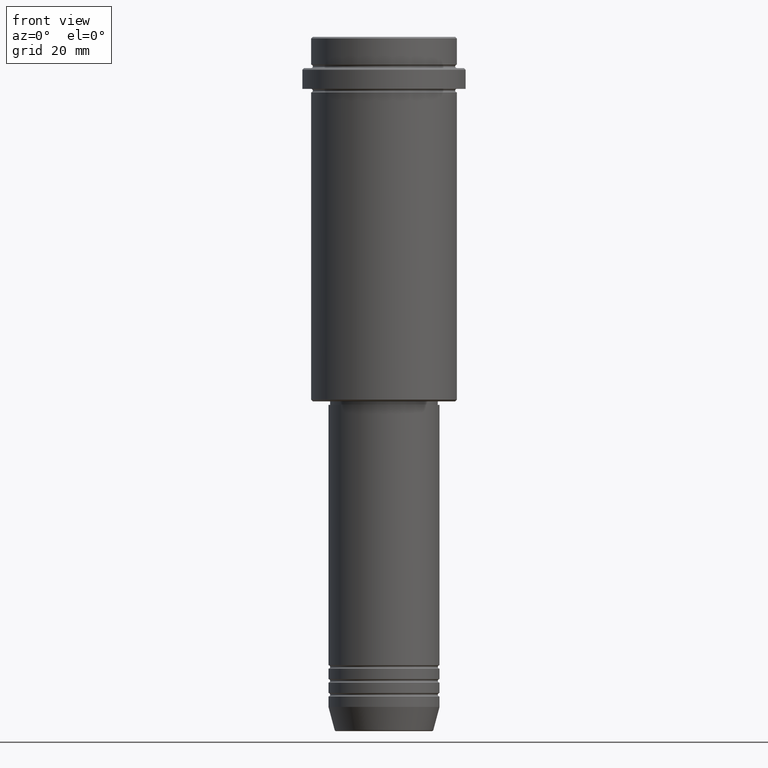
[diagram: clean part render]
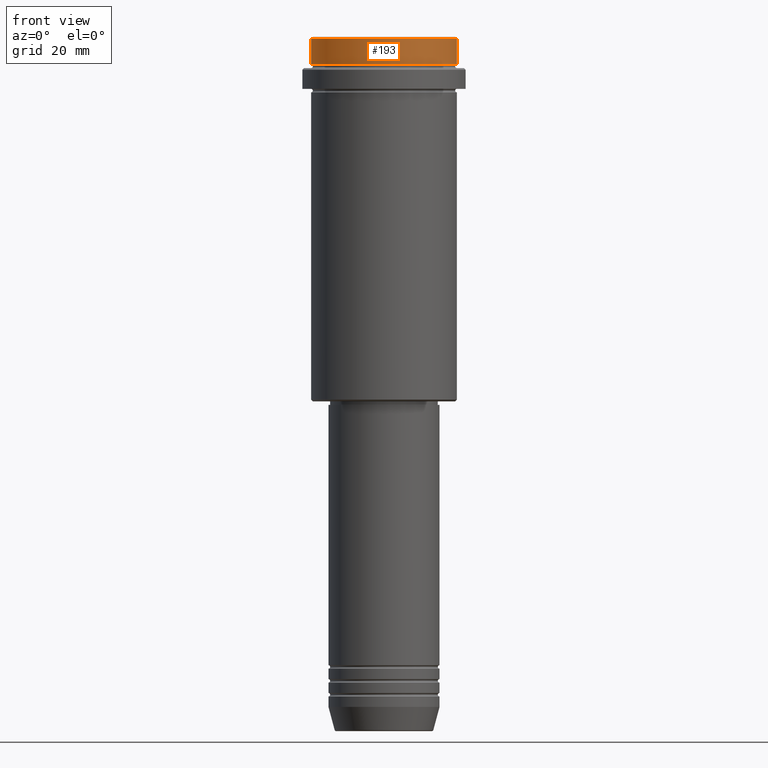
[diagram: same view with one face highlighted and labeled with its STEP entity id]
A machine part, front view. The second image highlights one B-rep face of the part: STEP entity #193.
In plain terms, the highlighted cylindrical surface (partial cylindrical patch) has radius 21 mm, axis along (-0, -0, 1).
Its self-contained STEP definition (entity closure, byte-faithful):
#23 = CARTESIAN_POINT ( 'NONE',  ( 0.000000000000000000, 0.000000000000000000, -0.5000000000000108802 ) ) ;
#74 = ORIENTED_EDGE ( 'NONE', *, *, #560, .T. ) ;
#127 = EDGE_CURVE ( 'NONE', #508, #980, #156, .T. ) ;
#156 = CIRCLE ( 'NONE', #1064, 21.00000000000000000 ) ;
#162 = EDGE_CURVE ( 'NONE', #508, #284, #505, .T. ) ;
#193 = ADVANCED_FACE ( 'NONE', ( #292 ), #729, .T. ) ;
#235 = CARTESIAN_POINT ( 'NONE',  ( 21.00000000000000000, 0.000000000000000000, -0.5000000000000108802 ) ) ;
#273 = AXIS2_PLACEMENT_3D ( 'NONE', #23, #1009, #700 ) ;
#274 = ORIENTED_EDGE ( 'NONE', *, *, #162, .F. ) ;
#284 = VERTEX_POINT ( 'NONE', #1209 ) ;
#292 = FACE_OUTER_BOUND ( 'NONE', #901, .T. ) ;
#318 = ORIENTED_EDGE ( 'NONE', *, *, #127, .T. ) ;
#319 = DIRECTION ( 'NONE',  ( -0.000000000000000000, -0.000000000000000000, 1.000000000000000000 ) ) ;
#425 = LINE ( 'NONE', #1397, #890 ) ;
#454 = VECTOR ( 'NONE', #628, 1000.000000000000000 ) ;
#487 = CARTESIAN_POINT ( 'NONE',  ( 21.00000000000000000, 0.000000000000000000, -7.999999999999998224 ) ) ;
#505 = LINE ( 'NONE', #1058, #454 ) ;
#508 = VERTEX_POINT ( 'NONE', #1002 ) ;
#510 = CARTESIAN_POINT ( 'NONE',  ( 0.000000000000000000, 0.000000000000000000, 0.000000000000000000 ) ) ;
#560 = EDGE_CURVE ( 'NONE', #1189, #284, #991, .T. ) ;
#628 = DIRECTION ( 'NONE',  ( -0.000000000000000000, -0.000000000000000000, 1.000000000000000000 ) ) ;
#658 = EDGE_CURVE ( 'NONE', #980, #1189, #425, .T. ) ;
#700 = DIRECTION ( 'NONE',  ( 1.000000000000000000, 0.000000000000000000, 0.000000000000000000 ) ) ;
#729 = CYLINDRICAL_SURFACE ( 'NONE', #797, 21.00000000000000000 ) ;
#797 = AXIS2_PLACEMENT_3D ( 'NONE', #510, #1276, #1382 ) ;
#890 = VECTOR ( 'NONE', #319, 1000.000000000000000 ) ;
#901 = EDGE_LOOP ( 'NONE', ( #274, #318, #970, #74 ) ) ;
#970 = ORIENTED_EDGE ( 'NONE', *, *, #658, .T. ) ;
#980 = VERTEX_POINT ( 'NONE', #487 ) ;
#991 = CIRCLE ( 'NONE', #273, 21.00000000000000000 ) ;
#1002 = CARTESIAN_POINT ( 'NONE',  ( -21.00000000000000000, 2.571758278209441661E-15, -7.999999999999998224 ) ) ;
#1009 = DIRECTION ( 'NONE',  ( 0.000000000000000000, 0.000000000000000000, -1.000000000000000000 ) ) ;
#1040 = DIRECTION ( 'NONE',  ( -0.000000000000000000, -0.000000000000000000, 1.000000000000000000 ) ) ;
#1058 = CARTESIAN_POINT ( 'NONE',  ( -21.00000000000000000, 2.571758278209441661E-15, 0.000000000000000000 ) ) ;
#1064 = AXIS2_PLACEMENT_3D ( 'NONE', #1156, #1040, #1169 ) ;
#1156 = CARTESIAN_POINT ( 'NONE',  ( 0.000000000000000000, 0.000000000000000000, -7.999999999999998224 ) ) ;
#1169 = DIRECTION ( 'NONE',  ( 1.000000000000000000, 0.000000000000000000, 0.000000000000000000 ) ) ;
#1189 = VERTEX_POINT ( 'NONE', #235 ) ;
#1209 = CARTESIAN_POINT ( 'NONE',  ( -21.00000000000000000, 2.571758278209441661E-15, -0.5000000000000108802 ) ) ;
#1276 = DIRECTION ( 'NONE',  ( -0.000000000000000000, -0.000000000000000000, 1.000000000000000000 ) ) ;
#1382 = DIRECTION ( 'NONE',  ( 1.000000000000000000, 0.000000000000000000, 0.000000000000000000 ) ) ;
#1397 = CARTESIAN_POINT ( 'NONE',  ( 21.00000000000000000, 0.000000000000000000, 0.000000000000000000 ) ) ;